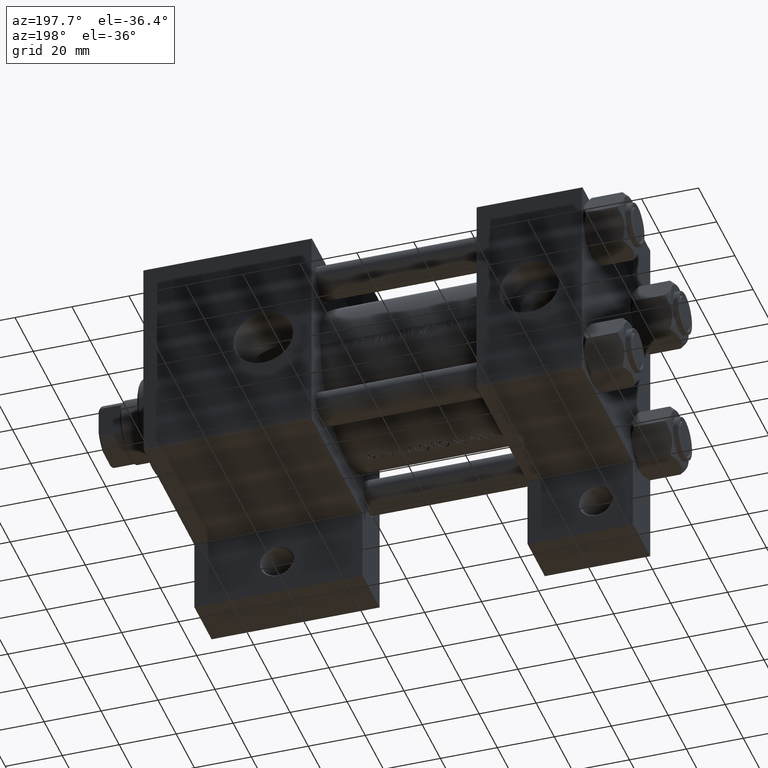
[diagram: clean part render]
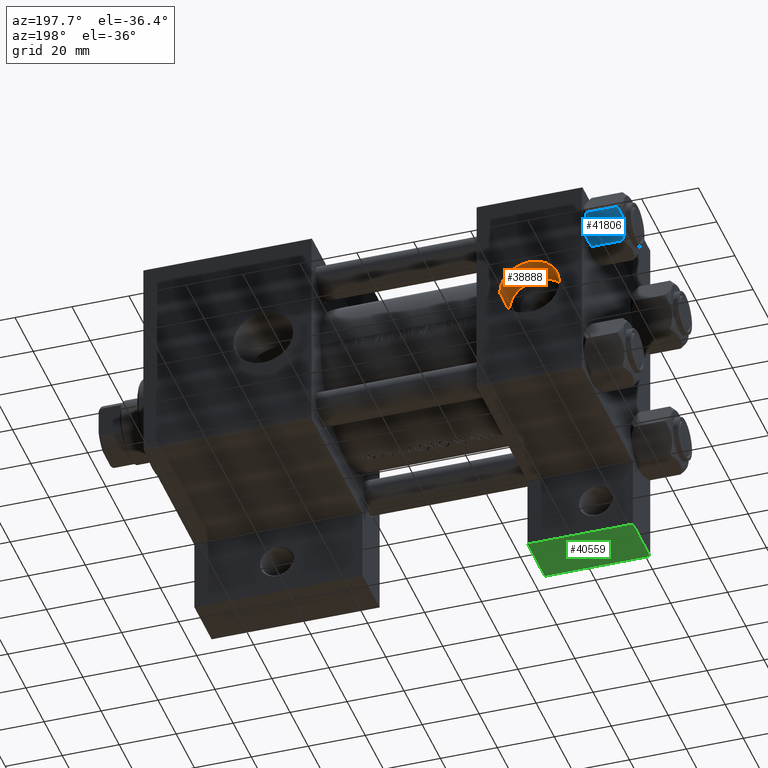
[diagram: same view with three faces highlighted in distinct colors, each labeled with its STEP entity id]
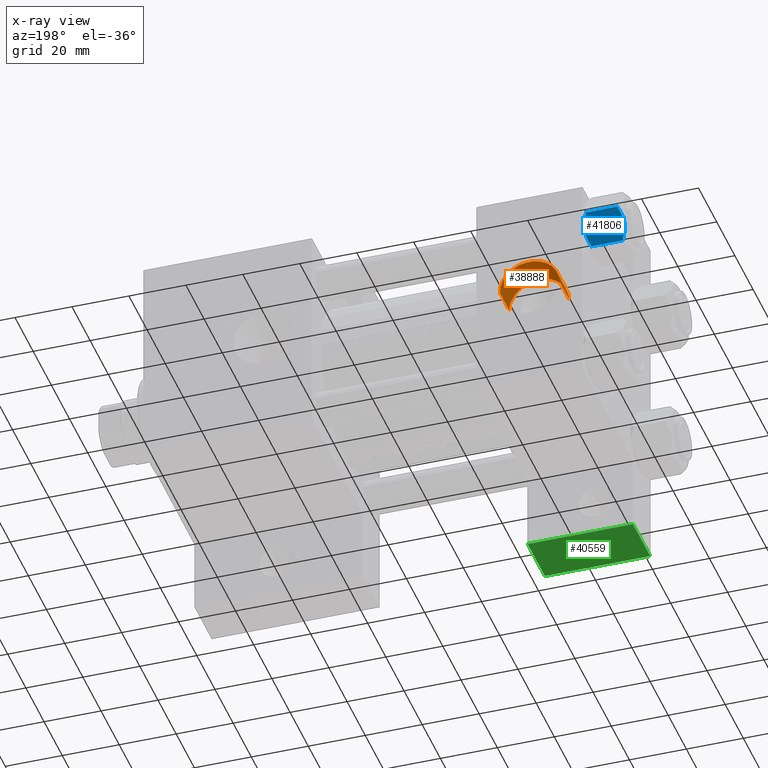
[diagram: x-ray of the same camera — body ghosted, the three highlighted faces saturated]
A machine part, auxiliary view with three faces highlighted in distinct colors.
The next image is the same camera in x-ray (body ghosted, the three faces saturated) — at least one of them is partly hidden behind the body in this view.
Their STEP definitions:

[orange] entity #38888 — the highlighted cylindrical surface (edge-blend (fillet) strip) has radius 10.48 mm, axis along (0, 1, 0).
#576 = VERTEX_POINT ( 'NONE', #9988 ) ;
#2402 = DIRECTION ( 'NONE',  ( 0.000000000000000000, 0.000000000000000000, 1.000000000000000000 ) ) ;
#2858 = DIRECTION ( 'NONE',  ( -0.000000000000000000, -0.000000000000000000, 1.000000000000000000 ) ) ;
#4767 = ORIENTED_EDGE ( 'NONE', *, *, #30842, .T. ) ;
#5415 = VECTOR ( 'NONE', #2858, 1000.000000000000000 ) ;
#5826 = CIRCLE ( 'NONE', #32698, 10.48000000000000043 ) ;
#8064 = CARTESIAN_POINT ( 'NONE',  ( 8.019999999999999574, -3.920740582423995006E-15, 37.29999999999999716 ) ) ;
#9988 = CARTESIAN_POINT ( 'NONE',  ( 8.019999999999999574, -3.920740582423995006E-15, 26.69999999999999929 ) ) ;
#12044 = EDGE_CURVE ( 'NONE', #41726, #35504, #5826, .T. ) ;
#13058 = CARTESIAN_POINT ( 'NONE',  ( 28.98000000000000043, -5.204170427930421283E-15, 37.29999999999999716 ) ) ;
#13224 = DIRECTION ( 'NONE',  ( 1.000000000000000000, 0.000000000000000000, 0.000000000000000000 ) ) ;
#17808 = CARTESIAN_POINT ( 'NONE',  ( 18.50000000000000000, -5.204170427930421283E-15, 26.69999999999999929 ) ) ;
#19578 = LINE ( 'NONE', #37856, #43099 ) ;
#21193 = ORIENTED_EDGE ( 'NONE', *, *, #25912, .F. ) ;
#21408 = FACE_OUTER_BOUND ( 'NONE', #34185, .T. ) ;
#22218 = AXIS2_PLACEMENT_3D ( 'NONE', #38963, #2402, #13224 ) ;
#23623 = DIRECTION ( 'NONE',  ( 0.000000000000000000, 0.000000000000000000, 1.000000000000000000 ) ) ;
#24514 = CIRCLE ( 'NONE', #22218, 10.48000000000000043 ) ;
#25211 = CARTESIAN_POINT ( 'NONE',  ( 28.98000000000000043, -5.204170427930421283E-15, 26.69999999999999929 ) ) ;
#25912 = EDGE_CURVE ( 'NONE', #576, #34165, #24514, .T. ) ;
#27701 = DIRECTION ( 'NONE',  ( 1.000000000000000000, 0.000000000000000000, 0.000000000000000000 ) ) ;
#27747 = DIRECTION ( 'NONE',  ( -0.000000000000000000, -0.000000000000000000, 1.000000000000000000 ) ) ;
#28860 = DIRECTION ( 'NONE',  ( 1.000000000000000000, 0.000000000000000000, 0.000000000000000000 ) ) ;
#28946 = EDGE_CURVE ( 'NONE', #34165, #35504, #35786, .T. ) ;
#30842 = EDGE_CURVE ( 'NONE', #576, #41726, #19578, .T. ) ;
#32698 = AXIS2_PLACEMENT_3D ( 'NONE', #38524, #23623, #27701 ) ;
#34165 = VERTEX_POINT ( 'NONE', #41493 ) ;
#34185 = EDGE_LOOP ( 'NONE', ( #21193, #4767, #45081, #37340 ) ) ;
#35365 = DIRECTION ( 'NONE',  ( -0.000000000000000000, -0.000000000000000000, 1.000000000000000000 ) ) ;
#35504 = VERTEX_POINT ( 'NONE', #13058 ) ;
#35786 = LINE ( 'NONE', #25211, #5415 ) ;
#36071 = CYLINDRICAL_SURFACE ( 'NONE', #47073, 10.48000000000000043 ) ;
#37340 = ORIENTED_EDGE ( 'NONE', *, *, #28946, .F. ) ;
#37856 = CARTESIAN_POINT ( 'NONE',  ( 8.019999999999999574, -3.920740582423995006E-15, 26.69999999999999929 ) ) ;
#38524 = CARTESIAN_POINT ( 'NONE',  ( 18.50000000000000000, -5.204170427930421283E-15, 37.29999999999999716 ) ) ;
#38888 = ADVANCED_FACE ( 'NONE', ( #21408 ), #36071, .F. ) ;
#38963 = CARTESIAN_POINT ( 'NONE',  ( 18.50000000000000000, -5.204170427930421283E-15, 26.69999999999999929 ) ) ;
#41493 = CARTESIAN_POINT ( 'NONE',  ( 28.98000000000000043, -5.204170427930421283E-15, 26.69999999999999929 ) ) ;
#41726 = VERTEX_POINT ( 'NONE', #8064 ) ;
#43099 = VECTOR ( 'NONE', #27747, 1000.000000000000000 ) ;
#45081 = ORIENTED_EDGE ( 'NONE', *, *, #12044, .T. ) ;
#47073 = AXIS2_PLACEMENT_3D ( 'NONE', #17808, #35365, #28860 ) ;

[blue] entity #41806 — the highlighted planar face has unit normal (0, -0.866, 0.5).
#1382 = CARTESIAN_POINT ( 'NONE',  ( 11.16445427487471775, -0.7890283410877989567, -12.89876091710046424 ) ) ;
#1407 = CARTESIAN_POINT ( 'NONE',  ( 8.715000000000001634, -5.031607595987590997, 0.000000000000000000 ) ) ;
#3911 = DIRECTION ( 'NONE',  ( -0.5000000000000001110, -0.8660254037844384856, 0.000000000000000000 ) ) ;
#4695 = ORIENTED_EDGE ( 'NONE', *, *, #26669, .F. ) ;
#4697 = CARTESIAN_POINT ( 'NONE',  ( 8.715000000000001634, -5.031607595987590997, -14.00000000000000000 ) ) ;
#5453 = CARTESIAN_POINT ( 'NONE',  ( 8.715000000000001634, -5.031607595987590997, -14.00000000000000000 ) ) ;
#6251 = DIRECTION ( 'NONE',  ( -0.000000000000000000, -0.000000000000000000, 1.000000000000000000 ) ) ;
#8588 = CARTESIAN_POINT ( 'NONE',  ( 9.227666995912104042, -4.143642311704127223, -13.96005881939309212 ) ) ;
#9070 = ORIENTED_EDGE ( 'NONE', *, *, #44474, .F. ) ;
#10105 = ORIENTED_EDGE ( 'NONE', *, *, #23571, .F. ) ;
#10203 = CARTESIAN_POINT ( 'NONE',  ( 11.62000000000000099, -1.607967606633101042E-15, -1.556784808024815669 ) ) ;
#10568 = EDGE_LOOP ( 'NONE', ( #10105, #16206, #15727, #28378, #4695, #9070 ) ) ;
#10782 = CARTESIAN_POINT ( 'NONE',  ( 5.810000000000000497, -10.06321519197517667, -1.556784808024813671 ) ) ;
#11117 = FACE_OUTER_BOUND ( 'NONE', #10568, .T. ) ;
#12197 = CARTESIAN_POINT ( 'NONE',  ( 9.974696630283194310, -2.849749030213795997, -13.69973261901326289 ) ) ;
#12237 = CARTESIAN_POINT ( 'NONE',  ( 6.265018354709775750, -9.275100283241444643, -12.89823354668504507 ) ) ;
#12949 = CARTESIAN_POINT ( 'NONE',  ( 5.810000000000000497, -10.06321519197517667, -12.44321519197518633 ) ) ;
#13476 = CARTESIAN_POINT ( 'NONE',  ( 8.202333004087901003, -5.919572880271055659, -0.03994118060690762112 ) ) ;
#13482 = CARTESIAN_POINT ( 'NONE',  ( 11.62000000000000099, -1.813166800014576593E-15, -14.00000000000000000 ) ) ;
#13652 = B_SPLINE_CURVE_WITH_KNOTS ( 'NONE', 3,
 ( #14431, #31741, #39430, #17795, #32451, #13476, #38973, #47125 ),
 .UNSPECIFIED., .F., .F.,
 ( 4, 2, 2, 4 ),
 ( 2.544312114902182352E-07, 0.003011550106433538189, 0.004517197944044561847, 0.006022845781655586372 ),
 .UNSPECIFIED. ) ;
#14431 = CARTESIAN_POINT ( 'NONE',  ( 5.810000000000000497, -10.06321519197517667, -1.556784808024813671 ) ) ;
#15727 = ORIENTED_EDGE ( 'NONE', *, *, #33923, .F. ) ;
#16206 = ORIENTED_EDGE ( 'NONE', *, *, #46189, .T. ) ;
#16600 = VECTOR ( 'NONE', #46660, 1000.000000000000000 ) ;
#16606 = CARTESIAN_POINT ( 'NONE',  ( 5.810000000000000497, -10.06321519197517667, -14.00000000000000000 ) ) ;
#16888 = VECTOR ( 'NONE', #6251, 1000.000000000000000 ) ;
#17087 = CARTESIAN_POINT ( 'NONE',  ( 8.715000000000001634, -5.031607595987590997, 0.000000000000000000 ) ) ;
#17571 = LINE ( 'NONE', #13482, #16600 ) ;
#17795 = CARTESIAN_POINT ( 'NONE',  ( 7.455303369716810735, -7.213466161761385109, -0.3002673809867383303 ) ) ;
#18356 = CARTESIAN_POINT ( 'NONE',  ( 11.62000000000000099, -1.813166800014576593E-15, -14.00000000000000000 ) ) ;
#18586 = PLANE ( 'NONE',  #43295 ) ;
#19921 = CARTESIAN_POINT ( 'NONE',  ( 11.16498164529022574, -0.7881149087337310233, -1.101766453314954264 ) ) ;
#20105 = B_SPLINE_CURVE_WITH_KNOTS ( 'NONE', 3,
 ( #1407, #45642, #30978, #41076, #19921, #27135 ),
 .UNSPECIFIED., .F., .F.,
 ( 4, 2, 4 ),
 ( 0.006022845781655586372, 0.009013049135303633289, 0.01200325248895168020 ),
 .UNSPECIFIED. ) ;
#20123 = CARTESIAN_POINT ( 'NONE',  ( 11.62000000000000099, -1.795242522838921761E-15, -12.44321519197518455 ) ) ;
#21870 = VERTEX_POINT ( 'NONE', #10203 ) ;
#23571 = EDGE_CURVE ( 'NONE', #43941, #41742, #39293, .T. ) ;
#24535 = LINE ( 'NONE', #16606, #16888 ) ;
#26669 = EDGE_CURVE ( 'NONE', #41517, #32733, #24535, .T. ) ;
#26679 = CARTESIAN_POINT ( 'NONE',  ( 6.733375043383497349, -8.463882702393844326, -13.28854452935655139 ) ) ;
#27135 = CARTESIAN_POINT ( 'NONE',  ( 11.62000000000000099, -1.607967606633101042E-15, -1.556784808024815669 ) ) ;
#28378 = ORIENTED_EDGE ( 'NONE', *, *, #44304, .F. ) ;
#29630 = DIRECTION ( 'NONE',  ( -0.8660254037844385966, 0.5000000000000002220, 0.000000000000000000 ) ) ;
#30225 = CARTESIAN_POINT ( 'NONE',  ( 8.969430103550385169, -4.590921729663315354, -14.00000000000000533 ) ) ;
#30266 = CARTESIAN_POINT ( 'NONE',  ( 8.715000000000001634, -5.031607595987590997, -14.00000000000000000 ) ) ;
#30715 = CARTESIAN_POINT ( 'NONE',  ( 10.69859855102500745, -1.595914123792264050, -13.28585617404753094 ) ) ;
#30978 = CARTESIAN_POINT ( 'NONE',  ( 9.716999946243698005, -3.296092779912227932, -0.1545239700039841013 ) ) ;
#31741 = CARTESIAN_POINT ( 'NONE',  ( 6.265545725125283738, -9.274186850887380373, -1.101239082899531319 ) ) ;
#32451 = CARTESIAN_POINT ( 'NONE',  ( 7.700834831386345058, -6.788193195293096949, -0.1903979688073415555 ) ) ;
#32733 = VERTEX_POINT ( 'NONE', #10782 ) ;
#33923 = EDGE_CURVE ( 'NONE', #47546, #21870, #20105, .T. ) ;
#34594 = CARTESIAN_POINT ( 'NONE',  ( 8.209704053696569304, -5.906805847843729751, -14.00000000000000711 ) ) ;
#36035 = B_SPLINE_CURVE_WITH_KNOTS ( 'NONE', 3,
 ( #30266, #34594, #37730, #26679, #12237, #12949 ),
 .UNSPECIFIED., .F., .F.,
 ( 4, 2, 4 ),
 ( 0.006022845781655588975, 0.009013049135303635023, 0.01200325248895167674 ),
 .UNSPECIFIED. ) ;
#37730 = CARTESIAN_POINT ( 'NONE',  ( 7.713000053756304375, -6.767122412062953174, -13.84547602999601601 ) ) ;
#38973 = CARTESIAN_POINT ( 'NONE',  ( 8.460569896449618099, -5.472293462311865753, 1.694065894508600678E-15 ) ) ;
#39293 = B_SPLINE_CURVE_WITH_KNOTS ( 'NONE', 3,
 ( #20123, #1382, #30715, #12197, #41529, #8588, #30225, #5453 ),
 .UNSPECIFIED., .F., .F.,
 ( 4, 2, 2, 4 ),
 ( 2.544312114905217906E-07, 0.003011550106433539490, 0.004517197944044564449, 0.006022845781655588975 ),
 .UNSPECIFIED. ) ;
#39430 = CARTESIAN_POINT ( 'NONE',  ( 6.731401448974986934, -8.467301068182914392, -0.7141438259524658383 ) ) ;
#41076 = CARTESIAN_POINT ( 'NONE',  ( 10.69662495661650503, -1.599332489581334560, -0.7114554706434500497 ) ) ;
#41517 = VERTEX_POINT ( 'NONE', #46329 ) ;
#41529 = CARTESIAN_POINT ( 'NONE',  ( 9.729165168613654657, -3.275021996682085490, -13.80960203119266083 ) ) ;
#41742 = VERTEX_POINT ( 'NONE', #4697 ) ;
#41806 = ADVANCED_FACE ( 'NONE', ( #11117 ), #18586, .F. ) ;
#43295 = AXIS2_PLACEMENT_3D ( 'NONE', #18356, #29630, #3911 ) ;
#43941 = VERTEX_POINT ( 'NONE', #45294 ) ;
#44304 = EDGE_CURVE ( 'NONE', #32733, #47546, #13652, .T. ) ;
#44474 = EDGE_CURVE ( 'NONE', #41742, #41517, #36035, .T. ) ;
#45294 = CARTESIAN_POINT ( 'NONE',  ( 11.62000000000000099, -1.795242522838921761E-15, -12.44321519197518455 ) ) ;
#45642 = CARTESIAN_POINT ( 'NONE',  ( 9.220295946303432189, -4.156409344131454020, 1.753358200816401307E-15 ) ) ;
#46189 = EDGE_CURVE ( 'NONE', #43941, #21870, #17571, .T. ) ;
#46329 = CARTESIAN_POINT ( 'NONE',  ( 5.810000000000000497, -10.06321519197517667, -12.44321519197518633 ) ) ;
#46660 = DIRECTION ( 'NONE',  ( -0.000000000000000000, -0.000000000000000000, 1.000000000000000000 ) ) ;
#47125 = CARTESIAN_POINT ( 'NONE',  ( 8.715000000000001634, -5.031607595987590997, 0.000000000000000000 ) ) ;
#47546 = VERTEX_POINT ( 'NONE', #17087 ) ;

[green] entity #40559 — the highlighted planar face has unit normal (0, -0, -1).
#573 = CARTESIAN_POINT ( 'NONE',  ( 1.561251128379126385E-14, 63.50000000000001421, 26.72167621838005047 ) ) ;
#1023 = CARTESIAN_POINT ( 'NONE',  ( 1.561251128379126385E-14, 63.50000000000000000, -18.50000000000000355 ) ) ;
#1843 = LINE ( 'NONE', #8348, #36577 ) ;
#3213 = EDGE_CURVE ( 'NONE', #26308, #21947, #40475, .T. ) ;
#4084 = EDGE_CURVE ( 'NONE', #26308, #39247, #23401, .T. ) ;
#4394 = DIRECTION ( 'NONE',  ( -1.000000000000000000, 0.000000000000000000, 0.000000000000000000 ) ) ;
#5984 = CARTESIAN_POINT ( 'NONE',  ( 37.00000000000001421, 63.50000000000000000, -37.50000000000002132 ) ) ;
#8103 = EDGE_LOOP ( 'NONE', ( #29134, #45704, #26413, #41611 ) ) ;
#8348 = CARTESIAN_POINT ( 'NONE',  ( 1.561251128379126385E-14, 63.50000000000000000, -37.50000000000002132 ) ) ;
#8527 = VERTEX_POINT ( 'NONE', #37824 ) ;
#11045 = AXIS2_PLACEMENT_3D ( 'NONE', #12439, #19417, #23031 ) ;
#11463 = VECTOR ( 'NONE', #15235, 1000.000000000000000 ) ;
#12439 = CARTESIAN_POINT ( 'NONE',  ( 1.561251128379126385E-14, 63.50000000000001421, 26.72167621838005047 ) ) ;
#15235 = DIRECTION ( 'NONE',  ( 0.000000000000000000, -1.734723475976806848E-16, -1.000000000000000000 ) ) ;
#19417 = DIRECTION ( 'NONE',  ( 0.000000000000000000, 1.000000000000000000, -1.734723475976806848E-16 ) ) ;
#19640 = DIRECTION ( 'NONE',  ( 1.000000000000000000, 0.000000000000000000, 0.000000000000000000 ) ) ;
#21947 = VERTEX_POINT ( 'NONE', #30371 ) ;
#22928 = LINE ( 'NONE', #573, #11463 ) ;
#22939 = CARTESIAN_POINT ( 'NONE',  ( 37.00000000000001421, 63.50000000000000000, -18.50000000000000355 ) ) ;
#23031 = DIRECTION ( 'NONE',  ( 0.000000000000000000, 1.734723475976806848E-16, 1.000000000000000000 ) ) ;
#23401 = LINE ( 'NONE', #45043, #29562 ) ;
#25482 = EDGE_CURVE ( 'NONE', #21947, #8527, #22928, .T. ) ;
#26308 = VERTEX_POINT ( 'NONE', #22939 ) ;
#26413 = ORIENTED_EDGE ( 'NONE', *, *, #47445, .F. ) ;
#28371 = DIRECTION ( 'NONE',  ( 0.000000000000000000, -1.734723475976806848E-16, -1.000000000000000000 ) ) ;
#29134 = ORIENTED_EDGE ( 'NONE', *, *, #3213, .F. ) ;
#29562 = VECTOR ( 'NONE', #28371, 1000.000000000000000 ) ;
#30371 = CARTESIAN_POINT ( 'NONE',  ( 1.561251128379126385E-14, 63.50000000000000000, -18.50000000000000355 ) ) ;
#30478 = PLANE ( 'NONE',  #11045 ) ;
#31189 = FACE_OUTER_BOUND ( 'NONE', #8103, .T. ) ;
#33358 = VECTOR ( 'NONE', #4394, 1000.000000000000000 ) ;
#36577 = VECTOR ( 'NONE', #19640, 1000.000000000000000 ) ;
#37824 = CARTESIAN_POINT ( 'NONE',  ( 1.561251128379126385E-14, 63.50000000000000000, -37.50000000000002132 ) ) ;
#39247 = VERTEX_POINT ( 'NONE', #5984 ) ;
#40475 = LINE ( 'NONE', #1023, #33358 ) ;
#40559 = ADVANCED_FACE ( 'NONE', ( #31189 ), #30478, .T. ) ;
#41611 = ORIENTED_EDGE ( 'NONE', *, *, #25482, .F. ) ;
#45043 = CARTESIAN_POINT ( 'NONE',  ( 37.00000000000001421, 63.50000000000001421, 26.72167621838005047 ) ) ;
#45704 = ORIENTED_EDGE ( 'NONE', *, *, #4084, .T. ) ;
#47445 = EDGE_CURVE ( 'NONE', #8527, #39247, #1843, .T. ) ;